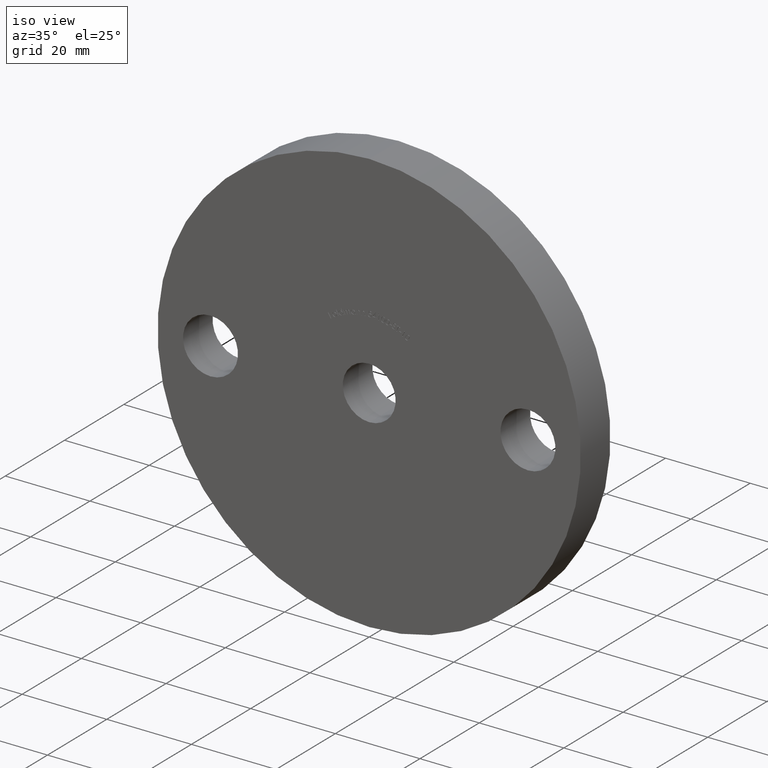
[diagram: clean part render]
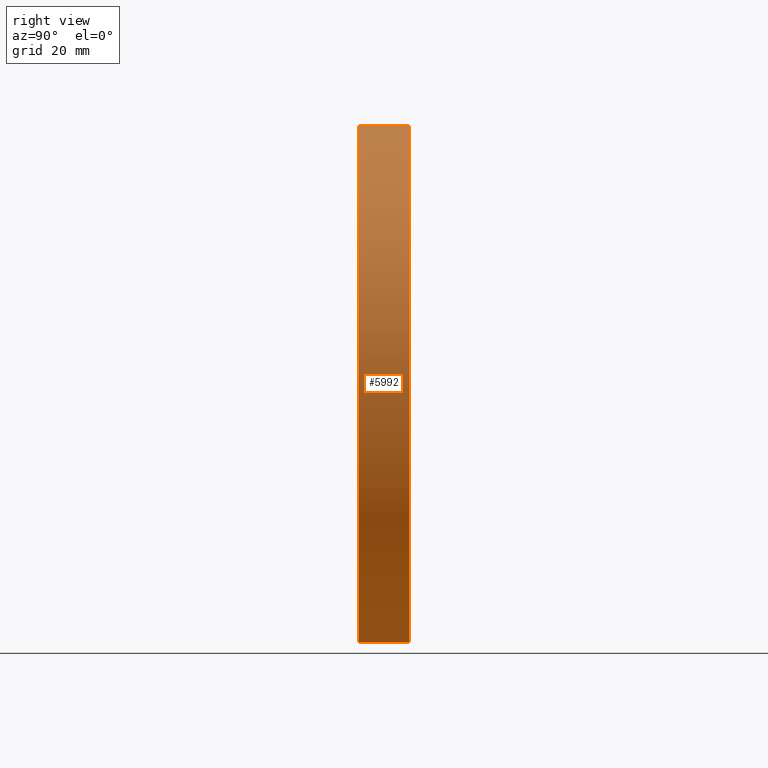
[diagram: tour spotlight — one face highlighted and labeled with its STEP entity id]
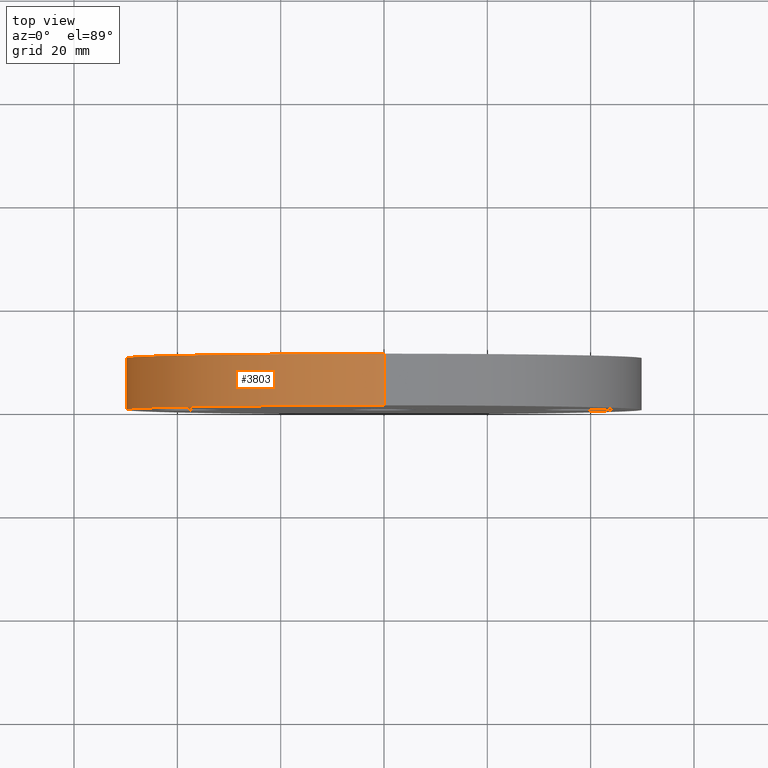
[diagram: tour spotlight — one face highlighted and labeled with its STEP entity id]
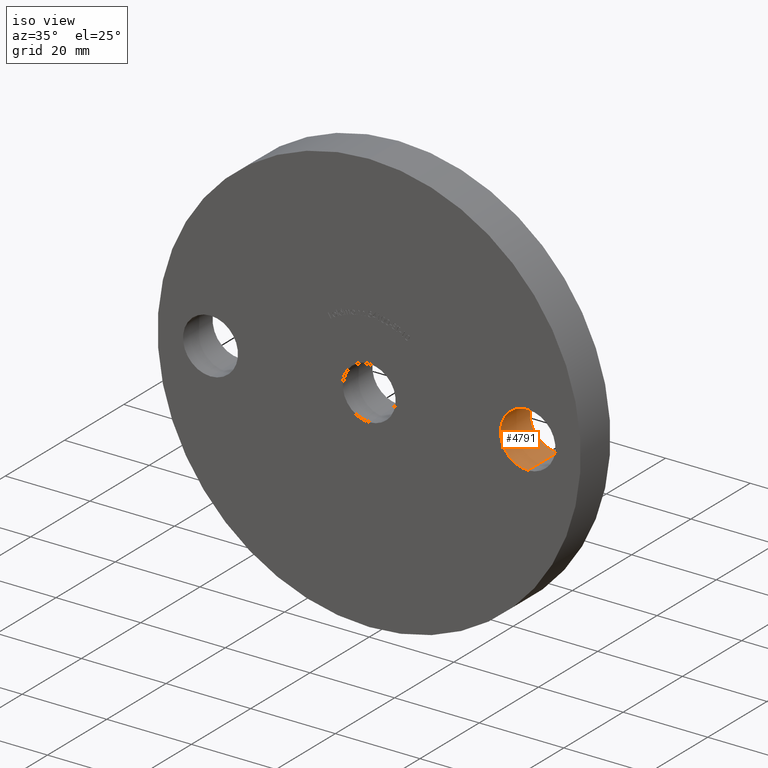
[diagram: tour spotlight — one face highlighted and labeled with its STEP entity id]
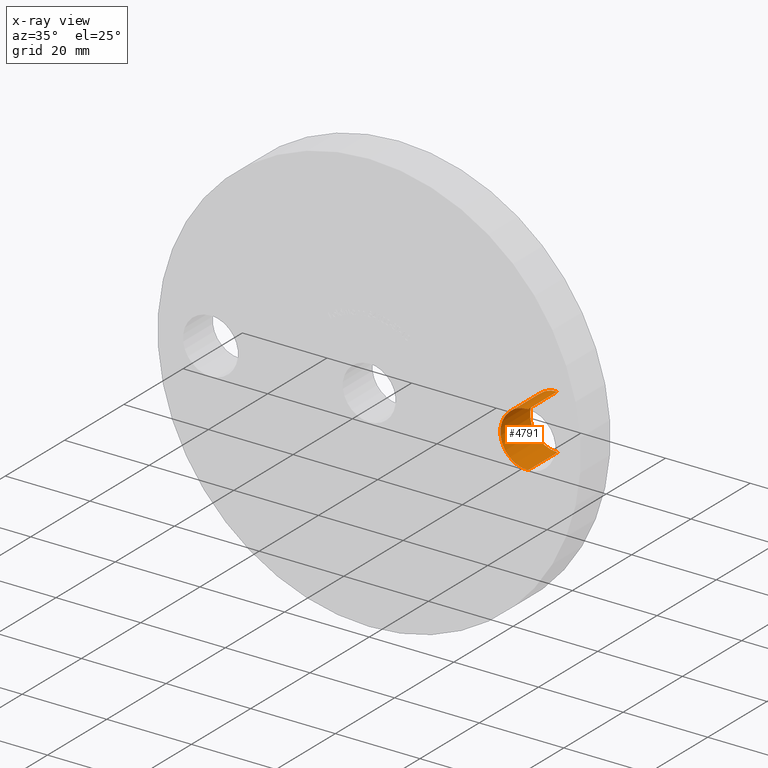
[diagram: x-ray of the same camera — body ghosted, this tour face saturated]
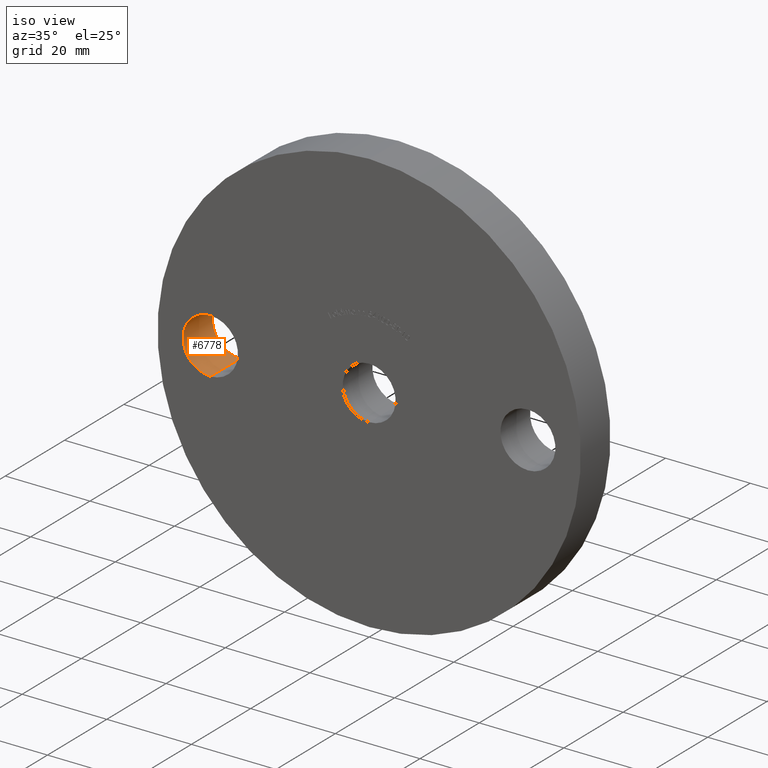
[diagram: tour spotlight — one face highlighted and labeled with its STEP entity id]
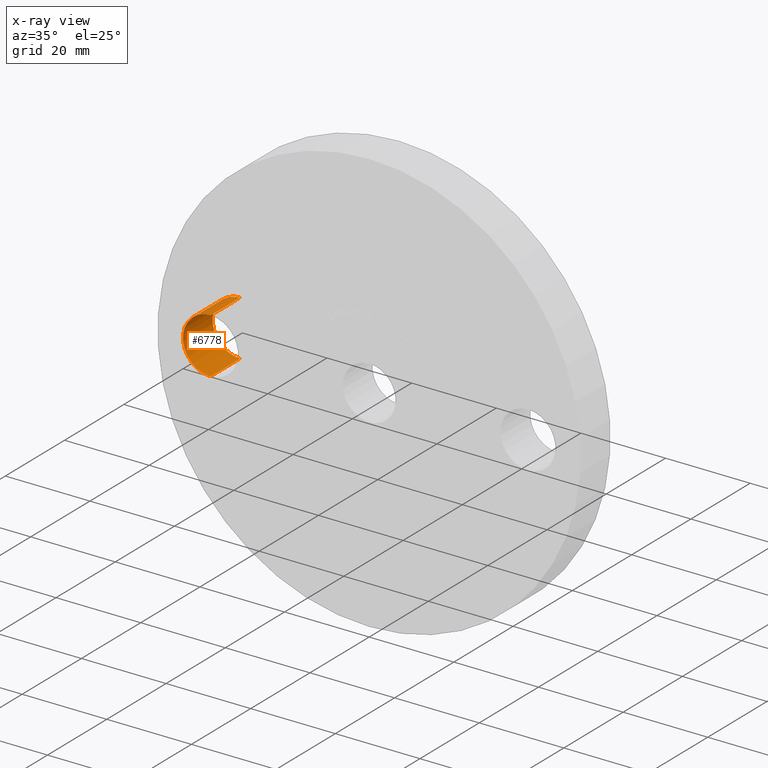
[diagram: x-ray of the same camera — body ghosted, this tour face saturated]
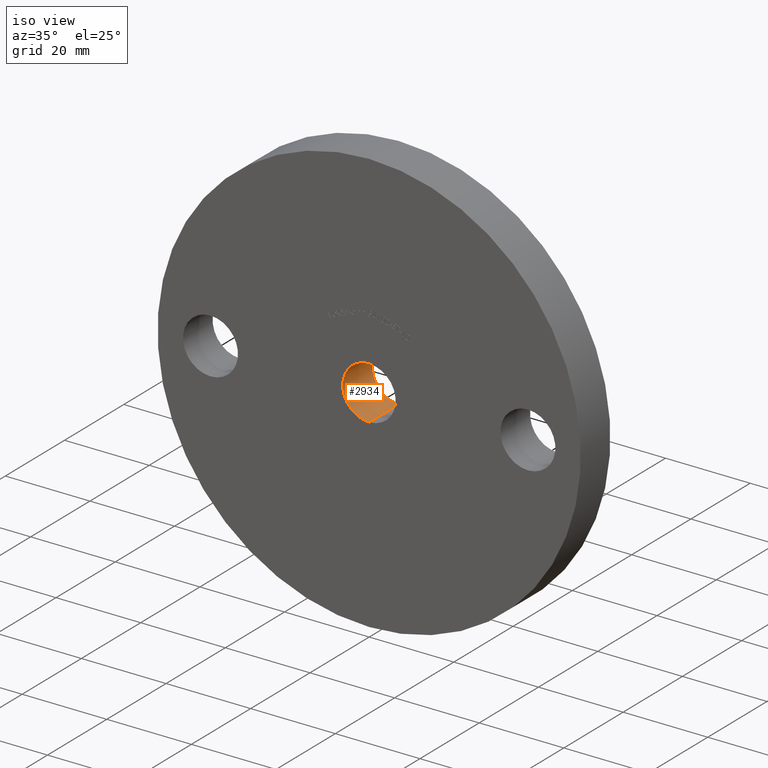
[diagram: tour spotlight — one face highlighted and labeled with its STEP entity id]
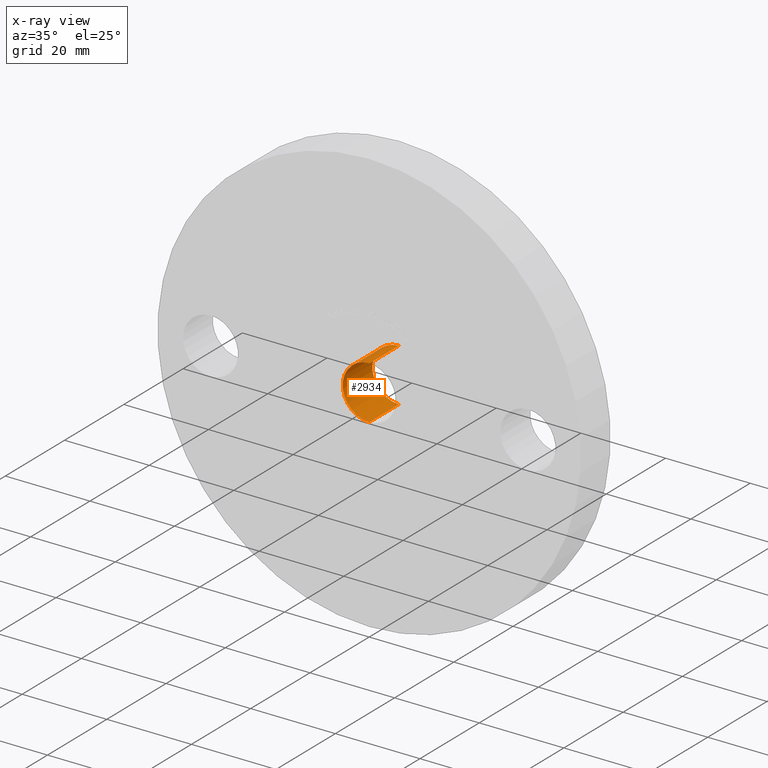
[diagram: x-ray of the same camera — body ghosted, this tour face saturated]
A machine part: a face-by-face anatomy tour. The part has 237 B-rep faces; the first image is the clean iso view, then the 5 largest visible faces are spotlighted one at a time (largest first), each with its STEP entity span.

Face 1 — right view, entity #5992. In plain terms, the highlighted cylindrical surface (partial cylindrical patch) has radius 50 mm, axis along (-0, -1, -0).
Definition (entity closure, byte-faithful):
#832 = VECTOR ( 'NONE', #2471, 1000.000000000000000 ) ;
#1561 = CARTESIAN_POINT ( 'NONE',  ( 6.123233995736766100E-015, 0.0000000000000000000, 50.00000000000000000 ) ) ;
#2376 = DIRECTION ( 'NONE',  ( -0.0000000000000000000, -1.000000000000000000, -0.0000000000000000000 ) ) ;
#2471 = DIRECTION ( 'NONE',  ( -0.0000000000000000000, -1.000000000000000000, -0.0000000000000000000 ) ) ;
#2509 = DIRECTION ( 'NONE',  ( 0.0000000000000000000, 0.0000000000000000000, 1.000000000000000000 ) ) ;
#2805 = ORIENTED_EDGE ( 'NONE', *, *, #6909, .T. ) ;
#3501 = VECTOR ( 'NONE', #3681, 1000.000000000000000 ) ;
#3681 = DIRECTION ( 'NONE',  ( -0.0000000000000000000, -1.000000000000000000, -0.0000000000000000000 ) ) ;
#4182 = CARTESIAN_POINT ( 'NONE',  ( 0.0000000000000000000, 10.00000000000000000, -50.00000000000000000 ) ) ;
#4544 = VERTEX_POINT ( 'NONE', #8117 ) ;
#5992 = ADVANCED_FACE ( 'NONE', ( #6296 ), #7692, .T. ) ;
#6296 = FACE_OUTER_BOUND ( 'NONE', #7821, .T. ) ;
#6374 = CARTESIAN_POINT ( 'NONE',  ( 0.0000000000000000000, 0.0000000000000000000, 0.0000000000000000000 ) ) ;
#6805 = AXIS2_PLACEMENT_3D ( 'NONE', #6374, #7536, #2509 ) ;
#6909 = EDGE_CURVE ( 'NONE', #4544, #11203, #11567, .T. ) ;
#7117 = CARTESIAN_POINT ( 'NONE',  ( 0.0000000000000000000, 0.0000000000000000000, -50.00000000000000000 ) ) ;
#7143 = EDGE_CURVE ( 'NONE', #12648, #12680, #8789, .T. ) ;
#7160 = ORIENTED_EDGE ( 'NONE', *, *, #10820, .T. ) ;
#7363 = DIRECTION ( 'NONE',  ( 0.0000000000000000000, 0.0000000000000000000, 1.000000000000000000 ) ) ;
#7397 = CARTESIAN_POINT ( 'NONE',  ( 0.0000000000000000000, 10.00000000000000000, 0.0000000000000000000 ) ) ;
#7515 = AXIS2_PLACEMENT_3D ( 'NONE', #7397, #2376, #7561 ) ;
#7536 = DIRECTION ( 'NONE',  ( 0.0000000000000000000, 1.000000000000000000, 0.0000000000000000000 ) ) ;
#7561 = DIRECTION ( 'NONE',  ( 0.0000000000000000000, 0.0000000000000000000, -1.000000000000000000 ) ) ;
#7692 = CYLINDRICAL_SURFACE ( 'NONE', #7515, 50.00000000000000000 ) ;
#7821 = EDGE_LOOP ( 'NONE', ( #8516, #2805, #7160, #7879 ) ) ;
#7879 = ORIENTED_EDGE ( 'NONE', *, *, #7143, .F. ) ;
#8117 = CARTESIAN_POINT ( 'NONE',  ( 6.123233995736766100E-015, 10.00000000000000000, 50.00000000000000000 ) ) ;
#8391 = CARTESIAN_POINT ( 'NONE',  ( 0.0000000000000000000, 10.00000000000000000, -50.00000000000000000 ) ) ;
#8516 = ORIENTED_EDGE ( 'NONE', *, *, #9592, .F. ) ;
#8666 = CARTESIAN_POINT ( 'NONE',  ( 6.123233995736766100E-015, 10.00000000000000000, 50.00000000000000000 ) ) ;
#8789 = LINE ( 'NONE', #8391, #832 ) ;
#9343 = CARTESIAN_POINT ( 'NONE',  ( 0.0000000000000000000, 10.00000000000000000, 0.0000000000000000000 ) ) ;
#9592 = EDGE_CURVE ( 'NONE', #4544, #12648, #12733, .T. ) ;
#10222 = AXIS2_PLACEMENT_3D ( 'NONE', #9343, #11455, #7363 ) ;
#10820 = EDGE_CURVE ( 'NONE', #11203, #12680, #12548, .T. ) ;
#11203 = VERTEX_POINT ( 'NONE', #1561 ) ;
#11455 = DIRECTION ( 'NONE',  ( 0.0000000000000000000, 1.000000000000000000, 0.0000000000000000000 ) ) ;
#11567 = LINE ( 'NONE', #8666, #3501 ) ;
#12548 = CIRCLE ( 'NONE', #6805, 50.00000000000000000 ) ;
#12648 = VERTEX_POINT ( 'NONE', #4182 ) ;
#12680 = VERTEX_POINT ( 'NONE', #7117 ) ;
#12733 = CIRCLE ( 'NONE', #10222, 50.00000000000000000 ) ;

Face 2 — top view, entity #3803. In plain terms, the highlighted cylindrical surface (partial cylindrical patch) has radius 50 mm, axis along (-0, -1, -0).
Definition (entity closure, byte-faithful):
#248 = ORIENTED_EDGE ( 'NONE', *, *, #6909, .F. ) ;
#832 = VECTOR ( 'NONE', #2471, 1000.000000000000000 ) ;
#1410 = EDGE_LOOP ( 'NONE', ( #248, #6951, #3922, #9255 ) ) ;
#1561 = CARTESIAN_POINT ( 'NONE',  ( 6.123233995736766100E-015, 0.0000000000000000000, 50.00000000000000000 ) ) ;
#2334 = CIRCLE ( 'NONE', #5322, 50.00000000000000000 ) ;
#2432 = CARTESIAN_POINT ( 'NONE',  ( 0.0000000000000000000, 10.00000000000000000, 0.0000000000000000000 ) ) ;
#2471 = DIRECTION ( 'NONE',  ( -0.0000000000000000000, -1.000000000000000000, -0.0000000000000000000 ) ) ;
#2624 = FACE_OUTER_BOUND ( 'NONE', #1410, .T. ) ;
#3501 = VECTOR ( 'NONE', #3681, 1000.000000000000000 ) ;
#3681 = DIRECTION ( 'NONE',  ( -0.0000000000000000000, -1.000000000000000000, -0.0000000000000000000 ) ) ;
#3803 = ADVANCED_FACE ( 'NONE', ( #2624 ), #10116, .T. ) ;
#3847 = DIRECTION ( 'NONE',  ( 0.0000000000000000000, 0.0000000000000000000, 1.000000000000000000 ) ) ;
#3922 = ORIENTED_EDGE ( 'NONE', *, *, #7143, .T. ) ;
#4182 = CARTESIAN_POINT ( 'NONE',  ( 0.0000000000000000000, 10.00000000000000000, -50.00000000000000000 ) ) ;
#4544 = VERTEX_POINT ( 'NONE', #8117 ) ;
#5262 = DIRECTION ( 'NONE',  ( 0.0000000000000000000, 1.000000000000000000, 0.0000000000000000000 ) ) ;
#5322 = AXIS2_PLACEMENT_3D ( 'NONE', #10829, #6912, #3847 ) ;
#6018 = AXIS2_PLACEMENT_3D ( 'NONE', #2432, #11296, #6337 ) ;
#6337 = DIRECTION ( 'NONE',  ( 0.0000000000000000000, 0.0000000000000000000, -1.000000000000000000 ) ) ;
#6909 = EDGE_CURVE ( 'NONE', #4544, #11203, #11567, .T. ) ;
#6912 = DIRECTION ( 'NONE',  ( 0.0000000000000000000, 1.000000000000000000, 0.0000000000000000000 ) ) ;
#6951 = ORIENTED_EDGE ( 'NONE', *, *, #8773, .F. ) ;
#7117 = CARTESIAN_POINT ( 'NONE',  ( 0.0000000000000000000, 0.0000000000000000000, -50.00000000000000000 ) ) ;
#7143 = EDGE_CURVE ( 'NONE', #12648, #12680, #8789, .T. ) ;
#7362 = DIRECTION ( 'NONE',  ( 0.0000000000000000000, 0.0000000000000000000, 1.000000000000000000 ) ) ;
#7572 = EDGE_CURVE ( 'NONE', #12680, #11203, #11390, .T. ) ;
#7683 = AXIS2_PLACEMENT_3D ( 'NONE', #9209, #5262, #7362 ) ;
#8117 = CARTESIAN_POINT ( 'NONE',  ( 6.123233995736766100E-015, 10.00000000000000000, 50.00000000000000000 ) ) ;
#8391 = CARTESIAN_POINT ( 'NONE',  ( 0.0000000000000000000, 10.00000000000000000, -50.00000000000000000 ) ) ;
#8666 = CARTESIAN_POINT ( 'NONE',  ( 6.123233995736766100E-015, 10.00000000000000000, 50.00000000000000000 ) ) ;
#8773 = EDGE_CURVE ( 'NONE', #12648, #4544, #2334, .T. ) ;
#8789 = LINE ( 'NONE', #8391, #832 ) ;
#9209 = CARTESIAN_POINT ( 'NONE',  ( 0.0000000000000000000, 0.0000000000000000000, 0.0000000000000000000 ) ) ;
#9255 = ORIENTED_EDGE ( 'NONE', *, *, #7572, .T. ) ;
#10116 = CYLINDRICAL_SURFACE ( 'NONE', #6018, 50.00000000000000000 ) ;
#10829 = CARTESIAN_POINT ( 'NONE',  ( 0.0000000000000000000, 10.00000000000000000, 0.0000000000000000000 ) ) ;
#11203 = VERTEX_POINT ( 'NONE', #1561 ) ;
#11296 = DIRECTION ( 'NONE',  ( -0.0000000000000000000, -1.000000000000000000, -0.0000000000000000000 ) ) ;
#11390 = CIRCLE ( 'NONE', #7683, 50.00000000000000000 ) ;
#11567 = LINE ( 'NONE', #8666, #3501 ) ;
#12648 = VERTEX_POINT ( 'NONE', #4182 ) ;
#12680 = VERTEX_POINT ( 'NONE', #7117 ) ;

Face 3 — iso view, entity #4791. An x-ray twin of the same camera follows (body ghosted, this face saturated) — the face is partly hidden behind the body. In plain terms, the highlighted cylindrical surface (edge-blend (fillet) strip) has radius 6.5 mm, axis along (-0, 1, -0).
Definition (entity closure, byte-faithful):
#369 = DIRECTION ( 'NONE',  ( -0.0000000000000000000, 1.000000000000000000, -0.0000000000000000000 ) ) ;
#583 = VECTOR ( 'NONE', #369, 1000.000000000000000 ) ;
#668 = VECTOR ( 'NONE', #4486, 1000.000000000000000 ) ;
#891 = EDGE_CURVE ( 'NONE', #9639, #1938, #11399, .T. ) ;
#1059 = DIRECTION ( 'NONE',  ( 0.0000000000000000000, 0.0000000000000000000, 1.000000000000000000 ) ) ;
#1063 = CARTESIAN_POINT ( 'NONE',  ( 37.50000000000000000, 10.00000000000000000, 6.499999999999991100 ) ) ;
#1137 = ORIENTED_EDGE ( 'NONE', *, *, #10751, .T. ) ;
#1247 = DIRECTION ( 'NONE',  ( 0.0000000000000000000, 1.000000000000000000, 0.0000000000000000000 ) ) ;
#1473 = CARTESIAN_POINT ( 'NONE',  ( 37.50000000000000000, 0.0000000000000000000, -9.184850993605148700E-015 ) ) ;
#1832 = FACE_OUTER_BOUND ( 'NONE', #12585, .T. ) ;
#1938 = VERTEX_POINT ( 'NONE', #12678 ) ;
#2462 = CYLINDRICAL_SURFACE ( 'NONE', #4631, 6.500000000000000900 ) ;
#2541 = VERTEX_POINT ( 'NONE', #1063 ) ;
#4346 = CARTESIAN_POINT ( 'NONE',  ( 37.50000000000000000, 0.0000000000000000000, -6.500000000000009800 ) ) ;
#4486 = DIRECTION ( 'NONE',  ( -0.0000000000000000000, 1.000000000000000000, -0.0000000000000000000 ) ) ;
#4593 = EDGE_CURVE ( 'NONE', #9639, #9591, #7432, .T. ) ;
#4631 = AXIS2_PLACEMENT_3D ( 'NONE', #7662, #10730, #1059 ) ;
#4737 = AXIS2_PLACEMENT_3D ( 'NONE', #10349, #1247, #10216 ) ;
#4791 = ADVANCED_FACE ( 'NONE', ( #1832 ), #2462, .F. ) ;
#5548 = CIRCLE ( 'NONE', #4737, 6.500000000000000900 ) ;
#6285 = ORIENTED_EDGE ( 'NONE', *, *, #4593, .T. ) ;
#7136 = ORIENTED_EDGE ( 'NONE', *, *, #7164, .F. ) ;
#7164 = EDGE_CURVE ( 'NONE', #1938, #2541, #11096, .T. ) ;
#7418 = AXIS2_PLACEMENT_3D ( 'NONE', #1473, #12533, #7433 ) ;
#7432 = LINE ( 'NONE', #4346, #583 ) ;
#7433 = DIRECTION ( 'NONE',  ( 0.0000000000000000000, 0.0000000000000000000, 1.000000000000000000 ) ) ;
#7662 = CARTESIAN_POINT ( 'NONE',  ( 37.50000000000000000, 0.0000000000000000000, -9.184850993605148700E-015 ) ) ;
#9438 = CARTESIAN_POINT ( 'NONE',  ( 37.50000000000000000, 0.0000000000000000000, 6.499999999999991100 ) ) ;
#9591 = VERTEX_POINT ( 'NONE', #12461 ) ;
#9639 = VERTEX_POINT ( 'NONE', #9693 ) ;
#9676 = ORIENTED_EDGE ( 'NONE', *, *, #891, .F. ) ;
#9693 = CARTESIAN_POINT ( 'NONE',  ( 37.50000000000000000, 0.0000000000000000000, -6.500000000000009800 ) ) ;
#10216 = DIRECTION ( 'NONE',  ( 0.0000000000000000000, 0.0000000000000000000, 1.000000000000000000 ) ) ;
#10349 = CARTESIAN_POINT ( 'NONE',  ( 37.50000000000000000, 10.00000000000000000, -9.184850993605148700E-015 ) ) ;
#10730 = DIRECTION ( 'NONE',  ( -0.0000000000000000000, 1.000000000000000000, -0.0000000000000000000 ) ) ;
#10751 = EDGE_CURVE ( 'NONE', #9591, #2541, #5548, .T. ) ;
#11096 = LINE ( 'NONE', #9438, #668 ) ;
#11399 = CIRCLE ( 'NONE', #7418, 6.500000000000000900 ) ;
#12461 = CARTESIAN_POINT ( 'NONE',  ( 37.50000000000000000, 10.00000000000000000, -6.500000000000009800 ) ) ;
#12533 = DIRECTION ( 'NONE',  ( 0.0000000000000000000, 1.000000000000000000, 0.0000000000000000000 ) ) ;
#12585 = EDGE_LOOP ( 'NONE', ( #9676, #6285, #1137, #7136 ) ) ;
#12678 = CARTESIAN_POINT ( 'NONE',  ( 37.50000000000000000, 0.0000000000000000000, 6.499999999999991100 ) ) ;

Face 4 — iso view, entity #6778. An x-ray twin of the same camera follows (body ghosted, this face saturated) — the face is partly hidden behind the body. In plain terms, the highlighted cylindrical surface (edge-blend (fillet) strip) has radius 6.5 mm, axis along (-0, 1, -0).
Definition (entity closure, byte-faithful):
#309 = LINE ( 'NONE', #2909, #5316 ) ;
#698 = ORIENTED_EDGE ( 'NONE', *, *, #4756, .F. ) ;
#1602 = DIRECTION ( 'NONE',  ( -0.0000000000000000000, 1.000000000000000000, -0.0000000000000000000 ) ) ;
#1641 = CARTESIAN_POINT ( 'NONE',  ( -37.50000000000000000, 0.0000000000000000000, -6.500000000000000900 ) ) ;
#1685 = DIRECTION ( 'NONE',  ( 0.0000000000000000000, 1.000000000000000000, 0.0000000000000000000 ) ) ;
#1748 = CARTESIAN_POINT ( 'NONE',  ( -37.50000000000000000, 0.0000000000000000000, 6.500000000000000900 ) ) ;
#1792 = DIRECTION ( 'NONE',  ( 0.0000000000000000000, 1.000000000000000000, 0.0000000000000000000 ) ) ;
#1859 = AXIS2_PLACEMENT_3D ( 'NONE', #9542, #2614, #4731 ) ;
#2561 = CARTESIAN_POINT ( 'NONE',  ( -37.50000000000000000, 0.0000000000000000000, 6.500000000000000900 ) ) ;
#2597 = CIRCLE ( 'NONE', #5320, 6.500000000000000900 ) ;
#2607 = AXIS2_PLACEMENT_3D ( 'NONE', #10605, #1792, #10640 ) ;
#2614 = DIRECTION ( 'NONE',  ( -0.0000000000000000000, 1.000000000000000000, -0.0000000000000000000 ) ) ;
#2905 = LINE ( 'NONE', #2561, #4324 ) ;
#2909 = CARTESIAN_POINT ( 'NONE',  ( -37.50000000000000000, 0.0000000000000000000, -6.500000000000000900 ) ) ;
#2950 = CARTESIAN_POINT ( 'NONE',  ( -37.50000000000000000, 10.00000000000000000, -6.500000000000000900 ) ) ;
#4020 = EDGE_LOOP ( 'NONE', ( #698, #9842, #7009, #11223 ) ) ;
#4324 = VECTOR ( 'NONE', #1602, 1000.000000000000000 ) ;
#4731 = DIRECTION ( 'NONE',  ( 0.0000000000000000000, 0.0000000000000000000, 1.000000000000000000 ) ) ;
#4756 = EDGE_CURVE ( 'NONE', #11306, #11904, #7743, .T. ) ;
#5316 = VECTOR ( 'NONE', #11967, 1000.000000000000000 ) ;
#5320 = AXIS2_PLACEMENT_3D ( 'NONE', #7640, #1685, #9666 ) ;
#6064 = CARTESIAN_POINT ( 'NONE',  ( -37.50000000000000000, 10.00000000000000000, 6.500000000000000900 ) ) ;
#6778 = ADVANCED_FACE ( 'NONE', ( #6914 ), #10048, .F. ) ;
#6914 = FACE_OUTER_BOUND ( 'NONE', #4020, .T. ) ;
#7009 = ORIENTED_EDGE ( 'NONE', *, *, #11419, .T. ) ;
#7640 = CARTESIAN_POINT ( 'NONE',  ( -37.50000000000000000, 10.00000000000000000, 0.0000000000000000000 ) ) ;
#7743 = CIRCLE ( 'NONE', #2607, 6.500000000000000900 ) ;
#8752 = EDGE_CURVE ( 'NONE', #11306, #11325, #309, .T. ) ;
#9542 = CARTESIAN_POINT ( 'NONE',  ( -37.50000000000000000, 0.0000000000000000000, 0.0000000000000000000 ) ) ;
#9666 = DIRECTION ( 'NONE',  ( 0.0000000000000000000, 0.0000000000000000000, 1.000000000000000000 ) ) ;
#9842 = ORIENTED_EDGE ( 'NONE', *, *, #8752, .T. ) ;
#10048 = CYLINDRICAL_SURFACE ( 'NONE', #1859, 6.500000000000000900 ) ;
#10605 = CARTESIAN_POINT ( 'NONE',  ( -37.50000000000000000, 0.0000000000000000000, 0.0000000000000000000 ) ) ;
#10640 = DIRECTION ( 'NONE',  ( 0.0000000000000000000, 0.0000000000000000000, 1.000000000000000000 ) ) ;
#11147 = VERTEX_POINT ( 'NONE', #6064 ) ;
#11223 = ORIENTED_EDGE ( 'NONE', *, *, #11230, .F. ) ;
#11230 = EDGE_CURVE ( 'NONE', #11904, #11147, #2905, .T. ) ;
#11306 = VERTEX_POINT ( 'NONE', #1641 ) ;
#11325 = VERTEX_POINT ( 'NONE', #2950 ) ;
#11419 = EDGE_CURVE ( 'NONE', #11325, #11147, #2597, .T. ) ;
#11904 = VERTEX_POINT ( 'NONE', #1748 ) ;
#11967 = DIRECTION ( 'NONE',  ( -0.0000000000000000000, 1.000000000000000000, -0.0000000000000000000 ) ) ;

Face 5 — iso view, entity #2934. An x-ray twin of the same camera follows (body ghosted, this face saturated) — the face is partly hidden behind the body. In plain terms, the highlighted cylindrical surface (edge-blend (fillet) strip) has radius 6.25 mm, axis along (-0, 1, -0).
Definition (entity closure, byte-faithful):
#101 = EDGE_CURVE ( 'NONE', #11187, #12108, #1766, .T. ) ;
#714 = EDGE_CURVE ( 'NONE', #6143, #11187, #8292, .T. ) ;
#1676 = DIRECTION ( 'NONE',  ( 0.0000000000000000000, 1.000000000000000000, 0.0000000000000000000 ) ) ;
#1766 = CIRCLE ( 'NONE', #11507, 6.250000000000000000 ) ;
#2025 = FACE_OUTER_BOUND ( 'NONE', #8975, .T. ) ;
#2673 = EDGE_CURVE ( 'NONE', #5185, #12108, #3770, .T. ) ;
#2821 = EDGE_CURVE ( 'NONE', #6143, #5185, #4077, .T. ) ;
#2934 = ADVANCED_FACE ( 'NONE', ( #2025 ), #6373, .F. ) ;
#3770 = LINE ( 'NONE', #9455, #9829 ) ;
#4077 = CIRCLE ( 'NONE', #10280, 6.250000000000000000 ) ;
#4254 = ORIENTED_EDGE ( 'NONE', *, *, #714, .T. ) ;
#4583 = CARTESIAN_POINT ( 'NONE',  ( 7.654042494670957600E-016, 10.00000000000000000, -6.250000000000000000 ) ) ;
#5185 = VERTEX_POINT ( 'NONE', #9347 ) ;
#5648 = VECTOR ( 'NONE', #10152, 1000.000000000000000 ) ;
#6143 = VERTEX_POINT ( 'NONE', #10411 ) ;
#6288 = ORIENTED_EDGE ( 'NONE', *, *, #2673, .F. ) ;
#6319 = DIRECTION ( 'NONE',  ( 0.0000000000000000000, 0.0000000000000000000, 1.000000000000000000 ) ) ;
#6373 = CYLINDRICAL_SURFACE ( 'NONE', #11424, 6.250000000000000000 ) ;
#6947 = DIRECTION ( 'NONE',  ( 0.0000000000000000000, 1.000000000000000000, 0.0000000000000000000 ) ) ;
#7195 = CARTESIAN_POINT ( 'NONE',  ( 0.0000000000000000000, 0.0000000000000000000, 0.0000000000000000000 ) ) ;
#7481 = DIRECTION ( 'NONE',  ( -0.0000000000000000000, 1.000000000000000000, -0.0000000000000000000 ) ) ;
#7674 = DIRECTION ( 'NONE',  ( 0.0000000000000000000, 0.0000000000000000000, 1.000000000000000000 ) ) ;
#8292 = LINE ( 'NONE', #11050, #5648 ) ;
#8694 = ORIENTED_EDGE ( 'NONE', *, *, #2821, .F. ) ;
#8975 = EDGE_LOOP ( 'NONE', ( #8694, #4254, #9786, #6288 ) ) ;
#9005 = DIRECTION ( 'NONE',  ( 0.0000000000000000000, 0.0000000000000000000, 1.000000000000000000 ) ) ;
#9089 = CARTESIAN_POINT ( 'NONE',  ( 0.0000000000000000000, 0.0000000000000000000, 0.0000000000000000000 ) ) ;
#9347 = CARTESIAN_POINT ( 'NONE',  ( 0.0000000000000000000, 0.0000000000000000000, 6.250000000000000000 ) ) ;
#9455 = CARTESIAN_POINT ( 'NONE',  ( 0.0000000000000000000, 0.0000000000000000000, 6.250000000000000000 ) ) ;
#9786 = ORIENTED_EDGE ( 'NONE', *, *, #101, .T. ) ;
#9829 = VECTOR ( 'NONE', #7481, 1000.000000000000000 ) ;
#10152 = DIRECTION ( 'NONE',  ( -0.0000000000000000000, 1.000000000000000000, -0.0000000000000000000 ) ) ;
#10280 = AXIS2_PLACEMENT_3D ( 'NONE', #9089, #6947, #9005 ) ;
#10411 = CARTESIAN_POINT ( 'NONE',  ( 7.654042494670957600E-016, 0.0000000000000000000, -6.250000000000000000 ) ) ;
#10794 = CARTESIAN_POINT ( 'NONE',  ( 0.0000000000000000000, 10.00000000000000000, 6.250000000000000000 ) ) ;
#11050 = CARTESIAN_POINT ( 'NONE',  ( 7.654042494670957600E-016, 0.0000000000000000000, -6.250000000000000000 ) ) ;
#11187 = VERTEX_POINT ( 'NONE', #4583 ) ;
#11424 = AXIS2_PLACEMENT_3D ( 'NONE', #7195, #12290, #6319 ) ;
#11507 = AXIS2_PLACEMENT_3D ( 'NONE', #12565, #1676, #7674 ) ;
#12108 = VERTEX_POINT ( 'NONE', #10794 ) ;
#12290 = DIRECTION ( 'NONE',  ( -0.0000000000000000000, 1.000000000000000000, -0.0000000000000000000 ) ) ;
#12565 = CARTESIAN_POINT ( 'NONE',  ( 0.0000000000000000000, 10.00000000000000000, 0.0000000000000000000 ) ) ;